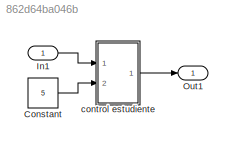
MODEL slx_862d64ba046b
KIND model
CONFIG AbsTol = auto
CONFIG FixedStep = auto
CONFIG MaxStep = auto
CONFIG MinStep = auto
CONFIG RelTol = 1e-3
CONFIG SampleTimeConstraint = Unconstrained
CONFIG Solver = ode45
CONFIG SolverMode = Auto
CONFIG SolverName = ode45
CONFIG StartTime = 0.0
CONFIG StopTime = 10.0
BLOCK [Constant] Constant
  Value = 5
BLOCK [Inport] In1
  IconDisplay = Port number
BLOCK [Outport] Out1
  IconDisplay = Port number
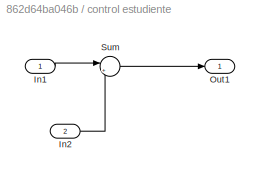
BLOCK [SubSystem] control estudiente 
  Ports = [2, 1]
  RequestExecContextInheritance = off
BLOCK [Inport] control estudiente /In1
  IconDisplay = Port number
BLOCK [Inport] control estudiente /In2
  IconDisplay = Port number
  Port = 2
BLOCK [Outport] control estudiente /Out1
  IconDisplay = Port number
BLOCK [Sum] control estudiente /Sum
  IconShape = round
  InputSameDT = off
  Inputs = |++
  OutDataTypeStr = Inherit: Inherit via internal rule
  Ports = [2, 1]
  SaturateOnIntegerOverflow = off
LINE Constant:1 -> control estudiente :2
LINE In1:1 -> control estudiente :1
LINE control estudiente /In1:1 -> control estudiente /Sum:1
LINE control estudiente /In2:1 -> control estudiente /Sum:2
LINE control estudiente /Sum:1 -> control estudiente /Out1:1
LINE control estudiente :1 -> Out1:1
